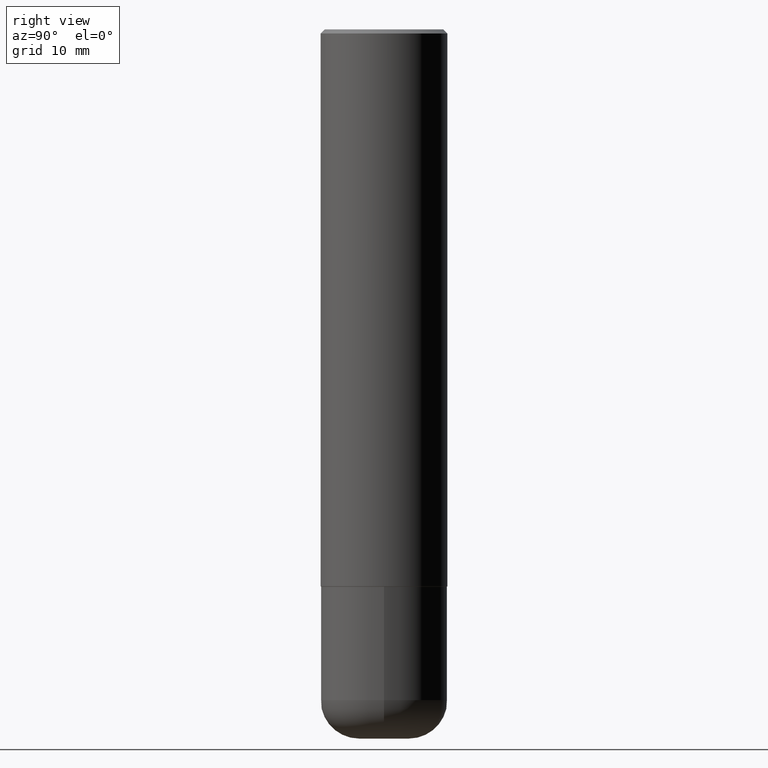
[diagram: clean part render]
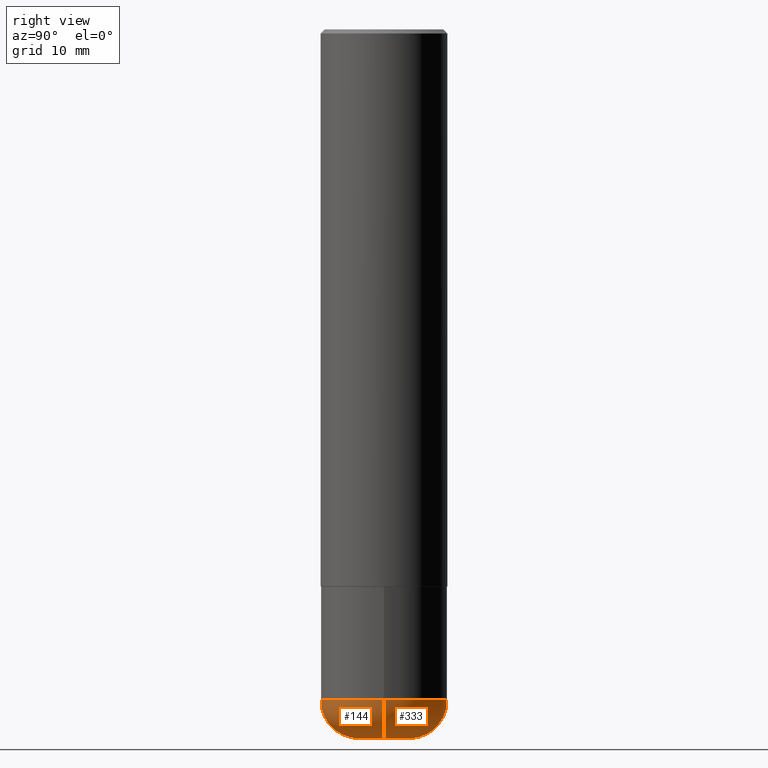
[diagram: same view with one multi-face feature highlighted, each face labeled with its STEP entity id]
A machine part, right view. The highlighted faces form ONE feature: a constant-radius fillet chain: 2 tangent blend faces with common blend radius 4.826 mm. The faces share edges in the B-rep.
Their STEP definitions:
[1] entity #333 (Torus):
#20 = CARTESIAN_POINT ( 'NONE',  ( -0.1225000000000000394, -1.034306350848269295E-14, -3.500000000000000000 ) ) ;
#27 = ORIENTED_EDGE ( 'NONE', *, *, #202, .F. ) ;
#32 = EDGE_CURVE ( 'NONE', #315, #268, #346, .T. ) ;
#48 = CARTESIAN_POINT ( 'NONE',  ( 8.094501748472800969E-29, -1.155680323157081116E-14, -3.310000000000000053 ) ) ;
#52 = AXIS2_PLACEMENT_3D ( 'NONE', #287, #388, #414 ) ;
#57 = CARTESIAN_POINT ( 'NONE',  ( 8.094501748472800969E-29, -1.155680323157081116E-14, -3.310000000000000053 ) ) ;
#80 = DIRECTION ( 'NONE',  ( -6.982962677686266711E-15, -1.000000000000000000, 3.491481338843145583E-15 ) ) ;
#85 = FACE_OUTER_BOUND ( 'NONE', #252, .T. ) ;
#114 = DIRECTION ( 'NONE',  ( 1.000000000000000000, -6.982962677686261977E-15, 0.000000000000000000 ) ) ;
#118 = DIRECTION ( 'NONE',  ( 1.000000000000000000, -6.982962677686269077E-15, 4.883557194083114022E-29 ) ) ;
#127 = ORIENTED_EDGE ( 'NONE', *, *, #351, .T. ) ;
#129 = TOROIDAL_SURFACE ( 'NONE', #137, 0.1225000000000000255, 0.1899999999999999467 ) ;
#137 = AXIS2_PLACEMENT_3D ( 'NONE', #57, #219, #118 ) ;
#146 = DIRECTION ( 'NONE',  ( -2.445468806185136597E-29, 3.491481338843145583E-15, 1.000000000000000000 ) ) ;
#188 = ORIENTED_EDGE ( 'NONE', *, *, #32, .T. ) ;
#201 = DIRECTION ( 'NONE',  ( -2.445468806185136597E-29, 3.491481338843145583E-15, 1.000000000000000000 ) ) ;
#202 = EDGE_CURVE ( 'NONE', #315, #373, #301, .T. ) ;
#206 = CARTESIAN_POINT ( 'NONE',  ( 0.1225000000000000394, -1.307559761396757607E-14, -3.500000000000000000 ) ) ;
#208 = DIRECTION ( 'NONE',  ( 1.000000000000000000, -6.982962677686269077E-15, 0.000000000000000000 ) ) ;
#214 = EDGE_CURVE ( 'NONE', #373, #418, #257, .T. ) ;
#217 = CARTESIAN_POINT ( 'NONE',  ( -0.3125000000000000000, -9.336357182320498084E-15, -3.310000000000000053 ) ) ;
#219 = DIRECTION ( 'NONE',  ( -2.445468806185136597E-29, 3.491481338843145583E-15, 1.000000000000000000 ) ) ;
#237 = CARTESIAN_POINT ( 'NONE',  ( 0.1225000000000000255, -1.241221615958737947E-14, -3.310000000000000053 ) ) ;
#245 = CARTESIAN_POINT ( 'NONE',  ( 0.3125000000000000000, -1.373897906834776951E-14, -3.310000000000000053 ) ) ;
#247 = ORIENTED_EDGE ( 'NONE', *, *, #214, .F. ) ;
#252 = EDGE_LOOP ( 'NONE', ( #188, #127, #247, #27 ) ) ;
#257 = CIRCLE ( 'NONE', #404, 0.3125000000000000000 ) ;
#264 = CIRCLE ( 'NONE', #52, 0.1899999999999999745 ) ;
#268 = VERTEX_POINT ( 'NONE', #20 ) ;
#287 = CARTESIAN_POINT ( 'NONE',  ( -0.1225000000000000255, -1.068638838026468806E-14, -3.310000000000000053 ) ) ;
#301 = CIRCLE ( 'NONE', #382, 0.1899999999999999745 ) ;
#315 = VERTEX_POINT ( 'NONE', #206 ) ;
#329 = CARTESIAN_POINT ( 'NONE',  ( 8.559140821647976968E-29, -1.222018468595100934E-14, -3.500000000000000000 ) ) ;
#333 = ADVANCED_FACE ( 'NONE', ( #85 ), #129, .T. ) ;
#346 = CIRCLE ( 'NONE', #355, 0.1225000000000000394 ) ;
#351 = EDGE_CURVE ( 'NONE', #268, #418, #264, .T. ) ;
#355 = AXIS2_PLACEMENT_3D ( 'NONE', #329, #201, #400 ) ;
#373 = VERTEX_POINT ( 'NONE', #245 ) ;
#382 = AXIS2_PLACEMENT_3D ( 'NONE', #237, #80, #114 ) ;
#388 = DIRECTION ( 'NONE',  ( 7.105427357601001859E-15, 1.000000000000000000, -3.491481338843145583E-15 ) ) ;
#400 = DIRECTION ( 'NONE',  ( 1.000000000000000000, -6.982962677686263555E-15, 0.000000000000000000 ) ) ;
#404 = AXIS2_PLACEMENT_3D ( 'NONE', #48, #146, #208 ) ;
#414 = DIRECTION ( 'NONE',  ( -1.000000000000000000, 7.105427357600998703E-15, 0.000000000000000000 ) ) ;
#418 = VERTEX_POINT ( 'NONE', #217 ) ;
[2] entity #144 (Torus):
#16 = CARTESIAN_POINT ( 'NONE',  ( 8.559140821647976968E-29, -1.222018468595100934E-14, -3.500000000000000000 ) ) ;
#20 = CARTESIAN_POINT ( 'NONE',  ( -0.1225000000000000394, -1.034306350848269295E-14, -3.500000000000000000 ) ) ;
#41 = DIRECTION ( 'NONE',  ( -2.445468806185136597E-29, 3.491481338843145583E-15, 1.000000000000000000 ) ) ;
#52 = AXIS2_PLACEMENT_3D ( 'NONE', #287, #388, #414 ) ;
#53 = ORIENTED_EDGE ( 'NONE', *, *, #202, .T. ) ;
#80 = DIRECTION ( 'NONE',  ( -6.982962677686266711E-15, -1.000000000000000000, 3.491481338843145583E-15 ) ) ;
#90 = EDGE_CURVE ( 'NONE', #268, #315, #163, .T. ) ;
#95 = EDGE_LOOP ( 'NONE', ( #385, #160, #53, #281 ) ) ;
#102 = AXIS2_PLACEMENT_3D ( 'NONE', #171, #139, #267 ) ;
#114 = DIRECTION ( 'NONE',  ( 1.000000000000000000, -6.982962677686261977E-15, 0.000000000000000000 ) ) ;
#139 = DIRECTION ( 'NONE',  ( -2.445468806185136597E-29, 3.491481338843145583E-15, 1.000000000000000000 ) ) ;
#144 = ADVANCED_FACE ( 'NONE', ( #231 ), #380, .T. ) ;
#149 = EDGE_CURVE ( 'NONE', #418, #373, #191, .T. ) ;
#160 = ORIENTED_EDGE ( 'NONE', *, *, #90, .T. ) ;
#163 = CIRCLE ( 'NONE', #227, 0.1225000000000000394 ) ;
#171 = CARTESIAN_POINT ( 'NONE',  ( 8.094501748472800969E-29, -1.155680323157081116E-14, -3.310000000000000053 ) ) ;
#191 = CIRCLE ( 'NONE', #334, 0.3125000000000000000 ) ;
#202 = EDGE_CURVE ( 'NONE', #315, #373, #301, .T. ) ;
#206 = CARTESIAN_POINT ( 'NONE',  ( 0.1225000000000000394, -1.307559761396757607E-14, -3.500000000000000000 ) ) ;
#217 = CARTESIAN_POINT ( 'NONE',  ( -0.3125000000000000000, -9.336357182320498084E-15, -3.310000000000000053 ) ) ;
#227 = AXIS2_PLACEMENT_3D ( 'NONE', #16, #305, #266 ) ;
#231 = FACE_OUTER_BOUND ( 'NONE', #95, .T. ) ;
#236 = CARTESIAN_POINT ( 'NONE',  ( 8.094501748472800969E-29, -1.155680323157081116E-14, -3.310000000000000053 ) ) ;
#237 = CARTESIAN_POINT ( 'NONE',  ( 0.1225000000000000255, -1.241221615958737947E-14, -3.310000000000000053 ) ) ;
#245 = CARTESIAN_POINT ( 'NONE',  ( 0.3125000000000000000, -1.373897906834776951E-14, -3.310000000000000053 ) ) ;
#264 = CIRCLE ( 'NONE', #52, 0.1899999999999999745 ) ;
#266 = DIRECTION ( 'NONE',  ( 1.000000000000000000, -6.982962677686263555E-15, 0.000000000000000000 ) ) ;
#267 = DIRECTION ( 'NONE',  ( 1.000000000000000000, -6.982962677686269077E-15, 4.883557194083114022E-29 ) ) ;
#268 = VERTEX_POINT ( 'NONE', #20 ) ;
#281 = ORIENTED_EDGE ( 'NONE', *, *, #149, .F. ) ;
#287 = CARTESIAN_POINT ( 'NONE',  ( -0.1225000000000000255, -1.068638838026468806E-14, -3.310000000000000053 ) ) ;
#301 = CIRCLE ( 'NONE', #382, 0.1899999999999999745 ) ;
#305 = DIRECTION ( 'NONE',  ( -2.445468806185136597E-29, 3.491481338843145583E-15, 1.000000000000000000 ) ) ;
#315 = VERTEX_POINT ( 'NONE', #206 ) ;
#334 = AXIS2_PLACEMENT_3D ( 'NONE', #236, #41, #368 ) ;
#351 = EDGE_CURVE ( 'NONE', #268, #418, #264, .T. ) ;
#368 = DIRECTION ( 'NONE',  ( 1.000000000000000000, -6.982962677686269077E-15, 0.000000000000000000 ) ) ;
#373 = VERTEX_POINT ( 'NONE', #245 ) ;
#380 = TOROIDAL_SURFACE ( 'NONE', #102, 0.1225000000000000255, 0.1899999999999999467 ) ;
#382 = AXIS2_PLACEMENT_3D ( 'NONE', #237, #80, #114 ) ;
#385 = ORIENTED_EDGE ( 'NONE', *, *, #351, .F. ) ;
#388 = DIRECTION ( 'NONE',  ( 7.105427357601001859E-15, 1.000000000000000000, -3.491481338843145583E-15 ) ) ;
#414 = DIRECTION ( 'NONE',  ( -1.000000000000000000, 7.105427357600998703E-15, 0.000000000000000000 ) ) ;
#418 = VERTEX_POINT ( 'NONE', #217 ) ;